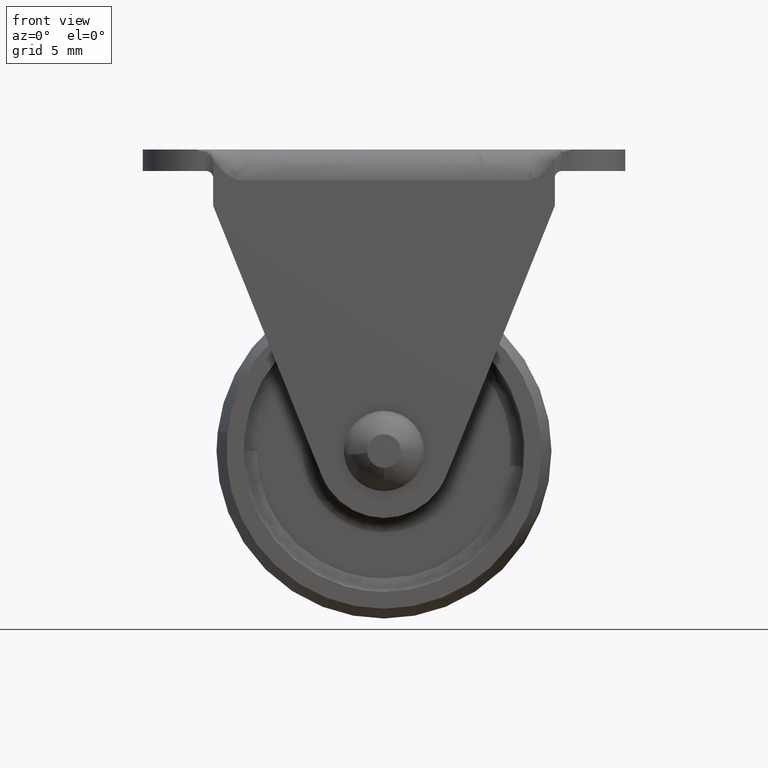
[diagram: clean part render]
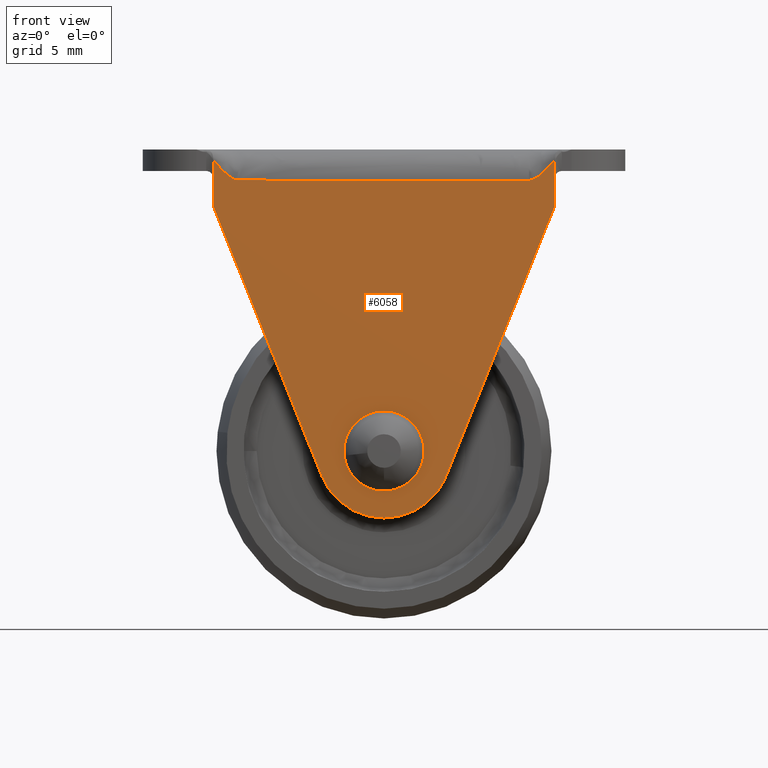
[diagram: same view with one face highlighted and labeled with its STEP entity id]
A machine part, front view. The second image highlights one B-rep face of the part: STEP entity #6058.
In plain terms, the highlighted face is a freeform B-spline surface patch.
Its self-contained STEP definition (entity closure, byte-faithful):
#2869=CARTESIAN_POINT('',(-2.249914326893559,-9.150000000000102,0.019634704966010));
#2870=VERTEX_POINT('',#2869);
#2876=CARTESIAN_POINT('',(0.0,-9.150000000000102,-2.250000000000000));
#2877=VERTEX_POINT('',#2876);
#2878=CARTESIAN_POINT('',(-2.249914326893559,-9.150000000000102,0.019634704966010));
#2879=CARTESIAN_POINT('',(-2.250000000000000,-9.150000000000103,0.009817539441253));
#2880=CARTESIAN_POINT('',(-2.250000000000000,-9.150000000000102,0.0));
#2881=CARTESIAN_POINT('',(-2.250000000000000,-9.150000000000103,-2.250000000000000));
#2882=CARTESIAN_POINT('',(0.0,-9.150000000000102,-2.250000000000000));
#2890=(BOUNDED_CURVE()B_SPLINE_CURVE(2,(#2878,#2879,#2880,#2881,#2882),.UNSPECIFIED.,.F.,.U.)B_SPLINE_CURVE_WITH_KNOTS((3,2,3),(0.248460105650190,0.250000000000000,0.500000000000000),.UNSPECIFIED.)CURVE()GEOMETRIC_REPRESENTATION_ITEM()RATIONAL_B_SPLINE_CURVE((0.996414028066101,0.998195901549006,1.0,0.707106781186547,1.0))REPRESENTATION_ITEM(''));
#2891=EDGE_CURVE('',#2870,#2877,#2890,.T.);
#2893=CARTESIAN_POINT('',(2.232599141551257,-9.150000000000102,-0.279286722102782));
#2894=VERTEX_POINT('',#2893);
#2895=CARTESIAN_POINT('',(0.0,-9.150000000000102,-2.250000000000000));
#2896=CARTESIAN_POINT('',(1.986073000183542,-9.150000000000102,-2.250000000000000));
#2897=CARTESIAN_POINT('',(2.232599141551258,-9.150000000000102,-0.279286722102782));
#2905=(BOUNDED_CURVE()B_SPLINE_CURVE(2,(#2895,#2896,#2897),.UNSPECIFIED.,.F.,.U.)B_SPLINE_CURVE_WITH_KNOTS((3,3),(0.500000000000000,0.728526167912513),.UNSPECIFIED.)CURVE()GEOMETRIC_REPRESENTATION_ITEM()RATIONAL_B_SPLINE_CURVE((1.0,0.732264940388002,0.954005618287669))REPRESENTATION_ITEM(''));
#2906=EDGE_CURVE('',#2877,#2894,#2905,.T.);
#2956=CARTESIAN_POINT('',(0.0,-9.150000000000102,2.250000000000000));
#2957=VERTEX_POINT('',#2956);
#2958=CARTESIAN_POINT('',(2.232599141551258,-9.150000000000102,-0.279286722102782));
#2959=CARTESIAN_POINT('',(2.250000000000000,-9.150000000000102,-0.140185438154938));
#2960=CARTESIAN_POINT('',(2.250000000000000,-9.150000000000102,0.0));
#2961=CARTESIAN_POINT('',(2.250000000000000,-9.150000000000103,2.250000000000000));
#2962=CARTESIAN_POINT('',(0.0,-9.150000000000102,2.250000000000000));
#2970=(BOUNDED_CURVE()B_SPLINE_CURVE(2,(#2958,#2959,#2960,#2961,#2962),.UNSPECIFIED.,.F.,.U.)B_SPLINE_CURVE_WITH_KNOTS((3,2,3),(0.728526167912513,0.750000000000000,1.0),.UNSPECIFIED.)CURVE()GEOMETRIC_REPRESENTATION_ITEM()RATIONAL_B_SPLINE_CURVE((0.954005618287669,0.974841840798545,1.0,0.707106781186547,1.0))REPRESENTATION_ITEM(''));
#2971=EDGE_CURVE('',#2894,#2957,#2970,.T.);
#2973=CARTESIAN_POINT('',(0.0,-9.150000000000102,2.250000000000000));
#2974=CARTESIAN_POINT('',(-2.230450223650995,-9.150000000000102,2.250000000000001));
#2975=CARTESIAN_POINT('',(-2.249914326893559,-9.150000000000102,0.019634704966010));
#2983=(BOUNDED_CURVE()B_SPLINE_CURVE(2,(#2973,#2974,#2975),.UNSPECIFIED.,.F.,.U.)B_SPLINE_CURVE_WITH_KNOTS((3,3),(0.0,0.248460105650190),.UNSPECIFIED.)CURVE()GEOMETRIC_REPRESENTATION_ITEM()RATIONAL_B_SPLINE_CURVE((1.0,0.708910879637542,0.996414028066101))REPRESENTATION_ITEM(''));
#2984=EDGE_CURVE('',#2957,#2870,#2983,.T.);
#4241=CARTESIAN_POINT('',(12.750010098916700,-9.149999999959778,21.700051119865051));
#4242=VERTEX_POINT('',#4241);
#4340=CARTESIAN_POINT('',(-12.750010098916800,-9.149999999959778,21.700051119865002));
#4341=VERTEX_POINT('',#4340);
#4359=CARTESIAN_POINT('',(12.750010098916700,-9.149999999959778,21.700051119865051));
#4360=CARTESIAN_POINT('',(12.083342904202070,-9.149999999959778,20.950051119865051));
#4361=CARTESIAN_POINT('',(11.416675709487430,-9.149999999959778,20.200051119865051));
#4362=CARTESIAN_POINT('',(10.750008514772899,-9.149999999959778,20.200051119865051));
#4363=CARTESIAN_POINT('',(3.583336171590839,-9.149999999959778,20.200051119865030));
#4364=CARTESIAN_POINT('',(-3.583336171591128,-9.149999999959778,20.200051119865019));
#4365=CARTESIAN_POINT('',(-10.750008514773000,-9.149999999959778,20.200051119865002));
#4366=CARTESIAN_POINT('',(-11.416675709487690,-9.149999999959778,20.200051119865002));
#4367=CARTESIAN_POINT('',(-12.083342904202290,-9.149999999959778,20.950051119865002));
#4368=CARTESIAN_POINT('',(-12.750010098916800,-9.149999999959778,21.700051119865002));
#4369=B_SPLINE_CURVE_WITH_KNOTS('',3,(#4359,#4360,#4361,#4362,#4363,#4364,#4365,#4366,#4367,#4368),.UNSPECIFIED.,.F.,.U.,(4,3,3,4),(0.026413536937680,0.100701609574911,0.899298390425092,0.973586463062318),.UNSPECIFIED.);
#4370=EDGE_CURVE('',#4242,#4341,#4369,.T.);
#4523=CARTESIAN_POINT('',(-12.750000000000000,-9.150000000000000,20.399999999999750));
#4524=VERTEX_POINT('',#4523);
#4680=CARTESIAN_POINT('',(12.750000000000000,-9.150000000000000,20.399999999999750));
#4681=VERTEX_POINT('',#4680);
#5169=CARTESIAN_POINT('',(-12.750000000000000,-9.150000000000000,20.399999999999750));
#5170=CARTESIAN_POINT('',(-12.750010098916800,-9.149999999959778,21.700051119865002));
#5171=QUASI_UNIFORM_CURVE('',1,(#5169,#5170),.UNSPECIFIED.,.F.,.U.);
#5172=EDGE_CURVE('',#4524,#4341,#5171,.T.);
#5221=CARTESIAN_POINT('',(12.750000000000000,-9.150000000000000,20.399999999999750));
#5222=CARTESIAN_POINT('',(12.750010098916700,-9.149999999959778,21.700051119865051));
#5223=QUASI_UNIFORM_CURVE('',1,(#5221,#5222),.UNSPECIFIED.,.F.,.U.);
#5224=EDGE_CURVE('',#4681,#4242,#5223,.T.);
#5850=CARTESIAN_POINT('',(-4.638816999999900,-9.150002000000001,-1.865843000000100));
#5851=VERTEX_POINT('',#5850);
#5857=CARTESIAN_POINT('',(-12.750000000000000,-9.150002000000001,18.299998999999900));
#5858=VERTEX_POINT('',#5857);
#5859=CARTESIAN_POINT('',(-12.750000000000000,-9.150002000000001,18.299998999999900));
#5860=CARTESIAN_POINT('',(-4.638816999999900,-9.150002000000001,-1.865843000000100));
#5861=QUASI_UNIFORM_CURVE('',1,(#5859,#5860),.UNSPECIFIED.,.F.,.U.);
#5862=EDGE_CURVE('',#5858,#5851,#5861,.T.);
#5884=CARTESIAN_POINT('',(12.750000000000000,-9.150002000000001,18.300030347964199));
#5885=VERTEX_POINT('',#5884);
#5891=CARTESIAN_POINT('',(4.638809000000090,-9.150002000000001,-1.865839000000000));
#5892=VERTEX_POINT('',#5891);
#5893=CARTESIAN_POINT('',(4.638809000000090,-9.150002000000001,-1.865839000000000));
#5894=CARTESIAN_POINT('',(12.750000000000000,-9.150002000000001,18.300030347964199));
#5895=QUASI_UNIFORM_CURVE('',1,(#5893,#5894),.UNSPECIFIED.,.F.,.U.);
#5896=EDGE_CURVE('',#5892,#5885,#5895,.T.);
#5942=CARTESIAN_POINT('',(-4.638816999999900,-9.150002000000001,-1.865843000000100));
#5943=CARTESIAN_POINT('',(-3.378185488561204,-9.150002000000001,-4.999999541616815));
#5944=CARTESIAN_POINT('',(-0.000003772552102,-9.150002000000001,-4.999998085131375));
#5945=CARTESIAN_POINT('',(3.378177943457001,-9.150002000000001,-4.999996628645934));
#5946=CARTESIAN_POINT('',(4.638809000000090,-9.150002000000001,-1.865839000000000));
#5954=(BOUNDED_CURVE()B_SPLINE_CURVE(2,(#5942,#5943,#5944,#5945,#5946),.UNSPECIFIED.,.F.,.U.)B_SPLINE_CURVE_WITH_KNOTS((3,2,3),(0.0,0.500000000000000,1.0),.UNSPECIFIED.)CURVE()GEOMETRIC_REPRESENTATION_ITEM()RATIONAL_B_SPLINE_CURVE((1.0,0.828603820584281,1.0,0.828603820584281,1.0))REPRESENTATION_ITEM(''));
#5955=EDGE_CURVE('',#5851,#5892,#5954,.T.);
#5969=CARTESIAN_POINT('',(-12.750000000000000,-9.150002000000001,18.299998999999900));
#5970=CARTESIAN_POINT('',(-12.750000000000000,-9.150000000000000,20.399999999999750));
#5971=QUASI_UNIFORM_CURVE('',1,(#5969,#5970),.UNSPECIFIED.,.F.,.U.);
#5972=EDGE_CURVE('',#5858,#4524,#5971,.T.);
#5985=CARTESIAN_POINT('',(12.750000000000000,-9.150002000000001,18.300030347964199));
#5986=CARTESIAN_POINT('',(12.750000000000000,-9.150000000000000,20.399999999999750));
#5987=QUASI_UNIFORM_CURVE('',1,(#5985,#5986),.UNSPECIFIED.,.F.,.U.);
#5988=EDGE_CURVE('',#5885,#4681,#5987,.T.);
#6037=CARTESIAN_POINT('',(-14.023736537126490,-9.150000000000000,-6.333665395779088));
#6038=CARTESIAN_POINT('',(-14.023736537126490,-9.150000000000000,23.033717236928180));
#6039=CARTESIAN_POINT('',(14.023736765114331,-9.150000000000000,-6.333665395779088));
#6040=CARTESIAN_POINT('',(14.023736765114331,-9.150000000000000,23.033717236928180));
#6041=B_SPLINE_SURFACE_WITH_KNOTS('',1,1,((#6037,#6039),(#6038,#6040)),.UNSPECIFIED.,.F.,.F.,.U.,(2,2),(2,2),(0.0,29.367382632707258),(0.0,28.047473302240821),.UNSPECIFIED.);
#6042=ORIENTED_EDGE('',*,*,#5224,.T.);
#6043=ORIENTED_EDGE('',*,*,#4370,.T.);
#6044=ORIENTED_EDGE('',*,*,#5172,.F.);
#6045=ORIENTED_EDGE('',*,*,#5972,.F.);
#6046=ORIENTED_EDGE('',*,*,#5862,.T.);
#6047=ORIENTED_EDGE('',*,*,#5955,.T.);
#6048=ORIENTED_EDGE('',*,*,#5896,.T.);
#6049=ORIENTED_EDGE('',*,*,#5988,.T.);
#6050=EDGE_LOOP('',(#6042,#6043,#6044,#6045,#6046,#6047,#6048,#6049));
#6051=FACE_OUTER_BOUND('',#6050,.T.);
#6052=ORIENTED_EDGE('',*,*,#2984,.F.);
#6053=ORIENTED_EDGE('',*,*,#2971,.F.);
#6054=ORIENTED_EDGE('',*,*,#2906,.F.);
#6055=ORIENTED_EDGE('',*,*,#2891,.F.);
#6056=EDGE_LOOP('',(#6052,#6053,#6054,#6055));
#6057=FACE_BOUND('',#6056,.T.);
#6058=ADVANCED_FACE('',(#6051,#6057),#6041,.F.);